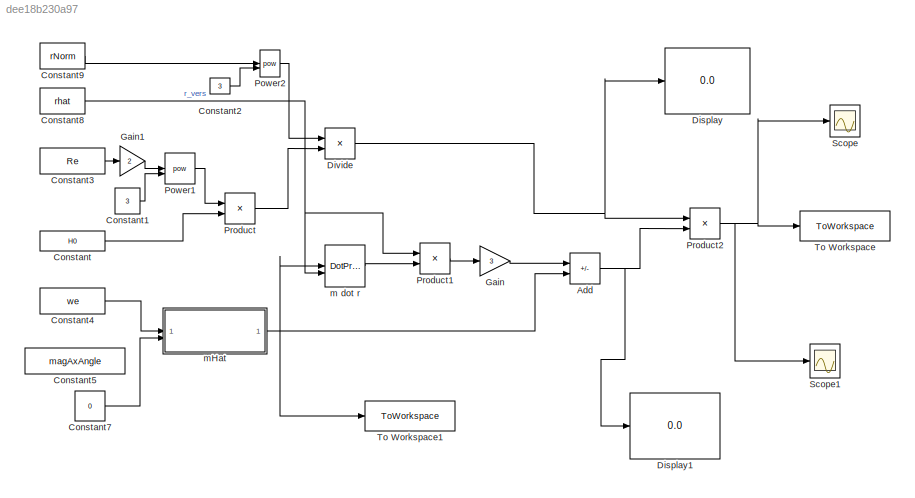
MODEL slx_dee18b230a97
KIND model
CONFIG AbsTol = auto
CONFIG EnableMultiTasking = off
CONFIG FixedStep = auto
CONFIG MaxStep = auto
CONFIG MinStep = auto
CONFIG RelTol = 1e-3
CONFIG SampleTimeConstraint = Unconstrained
CONFIG SolverName = VariableStepAuto
CONFIG StartTime = 0.0
CONFIG StopTime = 10.0
BLOCK [Sum] Add
  IconShape = rectangular
  Inputs = +-
BLOCK [Constant] Constant
  Value = H0
BLOCK [Constant] Constant1
  Value = 3
BLOCK [Constant] Constant2
  Value = 3
BLOCK [Constant] Constant3
  Value = Re
BLOCK [Constant] Constant4
  Value = we
BLOCK [Constant] Constant5
  Value = magAxAngle
BLOCK [Constant] Constant7
  Value = 0
BLOCK [Constant] Constant8
  Value = rhat
BLOCK [Constant] Constant9
  Value = rNorm
BLOCK [Display] Display
  Decimation = 1
BLOCK [Display] Display1
  Decimation = 1
BLOCK [Product] Divide
  Inputs = /*
BLOCK [Gain] Gain
  Gain = 3
BLOCK [Gain] Gain1
  Commented = through
  Gain = 2
BLOCK [Math] Power1
  Operator = pow
BLOCK [Math] Power2
  Operator = pow
BLOCK [Product] Product
BLOCK [Product] Product1
BLOCK [Product] Product2
BLOCK [Scope] Scope
  Floating = off
  NumInputPorts = 1
  ScopeSpecificationString = Simulink.scopes.TimeScopeBlockCfg('CurrentConfiguration', extmgr.ConfigurationSet(extmgr.Configuration('Core','General UI',true),extmgr.Configuration('Core','Source UI',true),extmgr.Configuration('Sources','WiredSimulink',true,'DataLoggingVariableName','ScopeData1'),extmgr.Configuration('Visuals','Time Domain',true,'SerializedDisplays',{struct('MinYLimReal','-0.00005','MaxYLimReal','0.00006','YLab...<+1515ch>
BLOCK [Scope] Scope1
  Floating = off
  NumInputPorts = 1
  ScopeSpecificationString = Simulink.scopes.TimeScopeBlockCfg('CurrentConfiguration', extmgr.ConfigurationSet(extmgr.Configuration('Core','General UI',true),extmgr.Configuration('Core','Source UI',true),extmgr.Configuration('Sources','WiredSimulink',true,'DataLoggingVariableName','ScopeData2'),extmgr.Configuration('Visuals','Time Domain',true,'SerializedDisplays',{struct('MinYLimReal','-0.00005','MaxYLimReal','0.00006','YLab...<+1515ch>
BLOCK [ToWorkspace] To Workspace
  FixptAsFi = on
  MaxDataPoints = inf
  SampleTime = -1
  VariableName = BN_sim
BLOCK [ToWorkspace] To Workspace1
  FixptAsFi = on
  MaxDataPoints = inf
  SampleTime = -1
  VariableName = mhat
BLOCK [DotProduct] m dot r
  OutDataTypeStr = Inherit: Inherit via internal rule
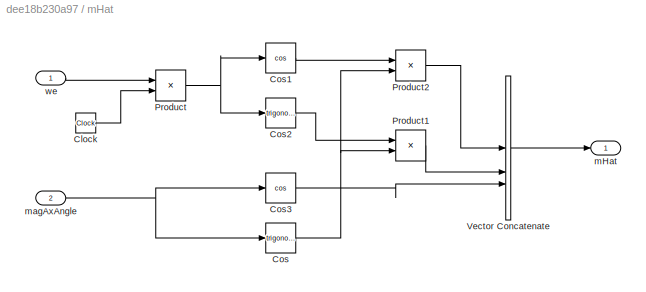
BLOCK [SubSystem] mHat
BLOCK [Clock] mHat/Clock
BLOCK [Trigonometry] mHat/Cos
BLOCK [Trigonometry] mHat/Cos1
  Operator = cos
BLOCK [Trigonometry] mHat/Cos2
BLOCK [Trigonometry] mHat/Cos3
  Operator = cos
BLOCK [Product] mHat/Product
BLOCK [Product] mHat/Product1
BLOCK [Product] mHat/Product2
BLOCK [Concatenate] mHat/Vector Concatenate
  NumInputs = 3
BLOCK [Outport] mHat/mHat
BLOCK [Inport] mHat/magAxAngle
  Port = 2
BLOCK [Inport] mHat/we
NET Add:1 -> Display1:1, Product2:2
LINE Constant1:1 -> Power1:2
LINE Constant2:1 -> Power2:2
LINE Constant3:1 -> Gain1:1
LINE Constant4:1 -> mHat:1
LINE Constant7:1 -> mHat:2
NET Constant8:1 -> Product1:1, m dot r:2
LINE Constant9:1 -> Power2:1
LINE Constant:1 -> Product:2
NET Divide:1 -> Display:1, Product2:1
LINE Gain1:1 -> Power1:1
LINE Gain:1 -> Add:1
LINE Power1:1 -> Product:1
LINE Power2:1 -> Divide:1
LINE Product1:1 -> Gain:1
NET Product2:1 -> Scope1:1, Scope:1, To Workspace:1
LINE Product:1 -> Divide:2
LINE m dot r:1 -> Product1:2
LINE mHat/Clock:1 -> mHat/Product:2
LINE mHat/Cos1:1 -> mHat/Product2:1
LINE mHat/Cos2:1 -> mHat/Product1:1
LINE mHat/Cos3:1 -> mHat/Vector Concatenate:3
NET mHat/Cos:1 -> mHat/Product1:2, mHat/Product2:2
LINE mHat/Product1:1 -> mHat/Vector Concatenate:2
LINE mHat/Product2:1 -> mHat/Vector Concatenate:1
NET mHat/Product:1 -> mHat/Cos1:1, mHat/Cos2:1
LINE mHat/Vector Concatenate:1 -> mHat/mHat:1
NET mHat/magAxAngle:1 -> mHat/Cos3:1, mHat/Cos:1
LINE mHat/we:1 -> mHat/Product:1
NET mHat:1 -> Add:2, To Workspace1:1, m dot r:1
note: NET lines group one-source signal fan-out (src -> all destinations, sorted); 1:1 wires keep LINE
